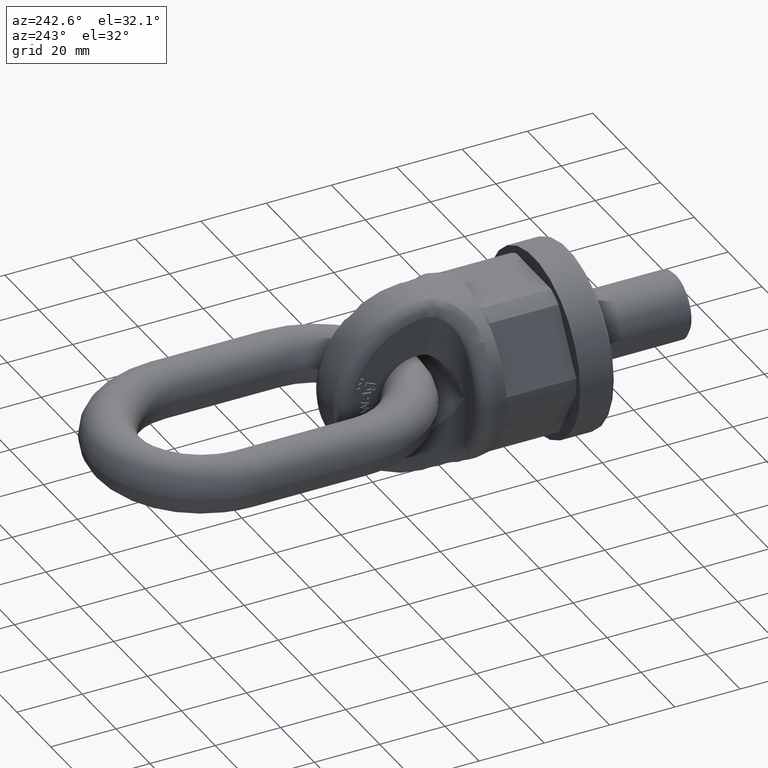
[diagram: clean part render]
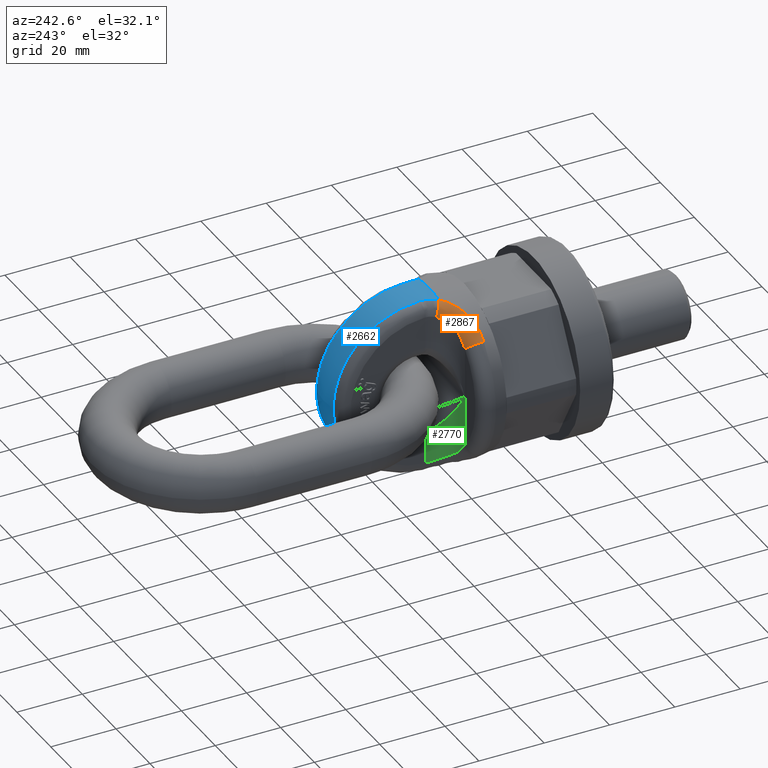
[diagram: same view with three faces highlighted in distinct colors, each labeled with its STEP entity id]
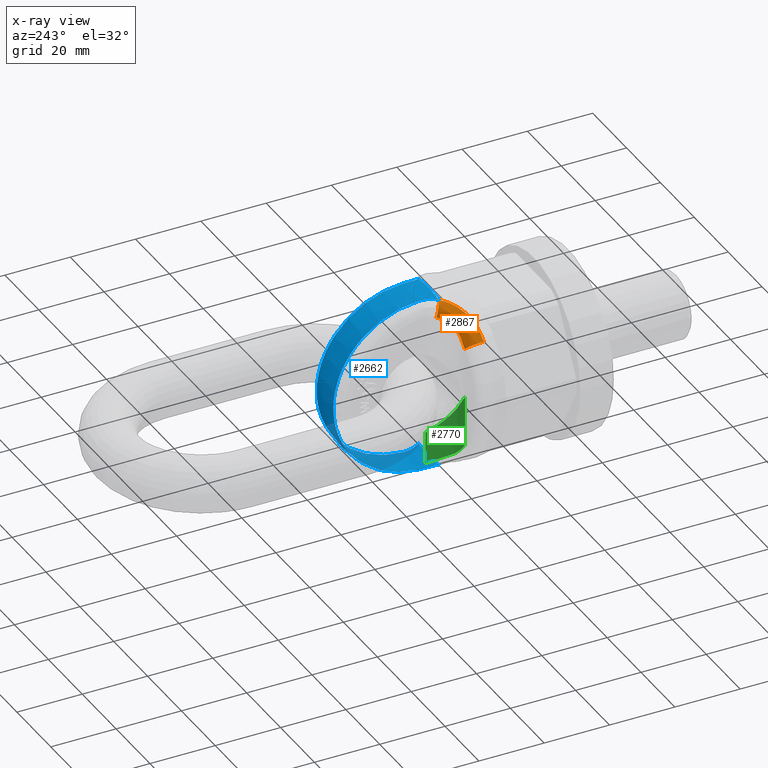
[diagram: x-ray of the same camera — body ghosted, the three highlighted faces saturated]
A machine part, auxiliary view with three faces highlighted in distinct colors.
The next image is the same camera in x-ray (body ghosted, the three faces saturated) — at least one of them is partly hidden behind the body in this view.
Their STEP definitions:

[orange] entity #2867 — the highlighted face is a freeform B-spline surface patch.
#209=(
BOUNDED_SURFACE()
B_SPLINE_SURFACE(3,2,((#9536,#9537,#9538),(#9539,#9540,#9541),(#9542,#9543,
#9544),(#9545,#9546,#9547),(#9548,#9549,#9550),(#9551,#9552,#9553),(#9554,
#9555,#9556),(#9557,#9558,#9559),(#9560,#9561,#9562),(#9563,#9564,#9565)),
 .UNSPECIFIED.,.F.,.F.,.F.)
B_SPLINE_SURFACE_WITH_KNOTS((4,2,2,2,4),(3,3),(0.,0.25,0.5,0.75,1.),(0.,
1.),.UNSPECIFIED.)
GEOMETRIC_REPRESENTATION_ITEM()
RATIONAL_B_SPLINE_SURFACE(((1.,0.644133810141845,1.),(1.,0.66588204352899,
1.),(1.,0.68458379151949,1.),(1.,0.714900270994408,1.),(1.,0.726509737506243,
1.),(1.,0.741906373784703,1.),(1.,0.745985489708039,1.),(1.,0.75064819052646,
1.),(1.,0.751424133303945,1.),(1.,0.753233426508289,1.)))
REPRESENTATION_ITEM('')
SURFACE()
);
#352=B_SPLINE_CURVE_WITH_KNOTS('',3,(#7036,#7037,#7038,#7039,#7040,#7041),
 .UNSPECIFIED.,.F.,.F.,(4,2,4),(0.,0.5,1.),.UNSPECIFIED.);
#536=B_SPLINE_CURVE_WITH_KNOTS('',3,(#8555,#8556,#8557,#8558,#8559,#8560),
 .UNSPECIFIED.,.F.,.F.,(4,2,4),(0.,0.5,1.),.UNSPECIFIED.);
#2003=FACE_OUTER_BOUND('',#3326,.T.);
#2867=ADVANCED_FACE('',(#2003),#209,.T.);
#3326=EDGE_LOOP('',(#4493,#4494,#4495,#4496));
#4493=ORIENTED_EDGE('',*,*,#5517,.F.);
#4494=ORIENTED_EDGE('',*,*,#5341,.F.);
#4495=ORIENTED_EDGE('',*,*,#5518,.F.);
#4496=ORIENTED_EDGE('',*,*,#5065,.F.);
#4652=VERTEX_POINT('',#7035);
#4653=VERTEX_POINT('',#7042);
#4833=VERTEX_POINT('',#8554);
#4834=VERTEX_POINT('',#8561);
#5065=EDGE_CURVE('',#4652,#4653,#352,.T.);
#5341=EDGE_CURVE('',#4833,#4834,#536,.T.);
#5517=EDGE_CURVE('',#4834,#4652,#5583,.T.);
#5518=EDGE_CURVE('',#4653,#4833,#5584,.T.);
#5583=CIRCLE('',#5782,3.75);
#5584=CIRCLE('',#5783,3.75);
#5782=AXIS2_PLACEMENT_3D('',#9534,#6523,#6524);
#5783=AXIS2_PLACEMENT_3D('',#9535,#6525,#6526);
#6523=DIRECTION('',(0.374934514116953,0.894580537769602,0.243207260516075));
#6524=DIRECTION('',(0.922272370507941,-0.386540650640606,1.85037170770859E-15));
#6525=DIRECTION('',(-0.69182554738145,0.,-0.722064686846239));
#6526=DIRECTION('',(-0.722064686846239,0.,0.69182554738145));
#7035=CARTESIAN_POINT('',(-5.97855748545781,42.8199600952318,26.4311194784264));
#7036=CARTESIAN_POINT('',(-5.97855748545781,42.8199600952318,26.4311194784264));
#7037=CARTESIAN_POINT('',(-7.26219213319004,40.2072835726519,25.6781542499971));
#7038=CARTESIAN_POINT('',(-9.52469696534108,38.2870663902746,24.6832729160973));
#7039=CARTESIAN_POINT('',(-14.2098259360332,36.0123617819212,21.8527492213663));
#7040=CARTESIAN_POINT('',(-16.6013238864941,35.6118127402589,20.0437038832759));
#7041=CARTESIAN_POINT('',(-18.6682431880994,35.6118127402589,17.8864411977636));
#7042=CARTESIAN_POINT('',(-18.6682431880994,35.6118127402589,17.8864411977636));
#8554=CARTESIAN_POINT('',(-16.,40.,15.3299405991591));
#8555=CARTESIAN_POINT('',(-16.,40.,15.3299405991591));
#8556=CARTESIAN_POINT('',(-14.8794748560647,40.,17.0476472472803));
#8557=CARTESIAN_POINT('',(-13.5271713575025,40.2280065150104,18.6110127704284));
#8558=CARTESIAN_POINT('',(-10.7475472236543,41.7605686109922,21.1686897909156));
#8559=CARTESIAN_POINT('',(-9.37125788862122,43.1195448749663,22.1128663312295));
#8560=CARTESIAN_POINT('',(-8.62182103593652,44.9076747948751,22.8268759131865));
#8561=CARTESIAN_POINT('',(-8.62182103593652,44.9076747948751,22.8268759131865));
#9534=CARTESIAN_POINT('',(-5.16329964653175,43.4581473549729,22.8268759131865));
#9535=CARTESIAN_POINT('',(-16.,36.25,15.3299405991591));
#9536=CARTESIAN_POINT('',(-18.6682431880994,35.6118127402589,17.8864411977636));
#9537=CARTESIAN_POINT('',(-19.2154608231793,40.,18.4107420628004));
#9538=CARTESIAN_POINT('',(-16.,40.,15.3299405991591));
#9539=CARTESIAN_POINT('',(-17.5894274051343,35.6118127385278,19.0124111523872));
#9540=CARTESIAN_POINT('',(-18.2757182966139,39.7553156357124,19.3304786546601));
#9541=CARTESIAN_POINT('',(-15.3704605252578,40.,16.2949918034262));
#9542=CARTESIAN_POINT('',(-16.4444409765082,35.7197833261104,20.0308110186554));
#9543=CARTESIAN_POINT('',(-17.2742164878545,39.6319575712031,20.2059870721022));
#9544=CARTESIAN_POINT('',(-14.7036868971831,40.0735118891017,17.1696606235407));
#9545=CARTESIAN_POINT('',(-14.0665659403365,36.240853672402,21.8734865684652));
#9546=CARTESIAN_POINT('',(-15.2751604125625,39.7183111175987,21.79041537681));
#9547=CARTESIAN_POINT('',(-13.3206818150558,40.4282831869797,18.7599826376661));
#9548=CARTESIAN_POINT('',(-12.8138626962236,36.6663209537043,22.7058835721363));
#9549=CARTESIAN_POINT('',(-14.2427097700032,39.9249982990616,22.5300147851844));
#9550=CARTESIAN_POINT('',(-12.5929416010845,40.7179630395719,19.4829003662312));
#9551=CARTESIAN_POINT('',(-10.4541482640395,37.8647950775256,24.1098264041129));
#9552=CARTESIAN_POINT('',(-12.3652239194859,40.6682557095507,23.7928831577407));
#9553=CARTESIAN_POINT('',(-11.2223177793594,41.5339454204874,20.7145732196923));
#9554=CARTESIAN_POINT('',(-9.31550375857059,38.6554843760291,24.7033215380145));
#9555=CARTESIAN_POINT('',(-11.4767155059349,41.2130328492782,24.3507055515921));
#9556=CARTESIAN_POINT('',(-10.5609813730963,42.0722870714899,21.242556788107));
#9557=CARTESIAN_POINT('',(-7.38299053056484,40.5259625862372,25.6840742142593));
#9558=CARTESIAN_POINT('',(-10.0002843734955,42.5300064920483,25.2823841347885));
#9559=CARTESIAN_POINT('',(-9.43805172394303,43.3458041501261,22.1294529456252));
#9560=CARTESIAN_POINT('',(-6.57216570205374,41.6117453967237,26.0829157689008));
#9561=CARTESIAN_POINT('',(-9.38929163417932,43.3066419896677,25.6719154107763));
#9562=CARTESIAN_POINT('',(-8.96661512727827,44.0850082436809,22.4983808801101));
#9563=CARTESIAN_POINT('',(-5.97855748545781,42.8199600952318,26.4311194784264));
#9564=CARTESIAN_POINT('',(-8.9296691013636,44.1731601595136,26.0032011622555));
#9565=CARTESIAN_POINT('',(-8.62182103593652,44.9076747948752,22.8268759131865));

[blue] entity #2662 — the highlighted spherical surface has radius 27.5 mm.
#307=SPHERICAL_SURFACE('',#5652,27.5);
#353=B_SPLINE_CURVE_WITH_KNOTS('',3,(#7045,#7046,#7047,#7048),
 .UNSPECIFIED.,.F.,.F.,(4,4),(0.,1.),.UNSPECIFIED.);
#354=B_SPLINE_CURVE_WITH_KNOTS('',3,(#7052,#7053,#7054,#7055),
 .UNSPECIFIED.,.F.,.F.,(4,4),(0.,1.),.UNSPECIFIED.);
#355=B_SPLINE_CURVE_WITH_KNOTS('',3,(#7056,#7057,#7058,#7059),
 .UNSPECIFIED.,.F.,.F.,(4,4),(0.,1.),.UNSPECIFIED.);
#356=B_SPLINE_CURVE_WITH_KNOTS('',3,(#7063,#7064,#7065,#7066),
 .UNSPECIFIED.,.F.,.F.,(4,4),(0.,1.),.UNSPECIFIED.);
#1814=FACE_OUTER_BOUND('',#3098,.T.);
#2662=ADVANCED_FACE('',(#1814),#307,.T.);
#3098=EDGE_LOOP('',(#3522,#3523,#3524,#3525,#3526,#3527,#3528,#3529));
#3522=ORIENTED_EDGE('',*,*,#5060,.F.);
#3523=ORIENTED_EDGE('',*,*,#5067,.T.);
#3524=ORIENTED_EDGE('',*,*,#5068,.T.);
#3525=ORIENTED_EDGE('',*,*,#5069,.T.);
#3526=ORIENTED_EDGE('',*,*,#5064,.F.);
#3527=ORIENTED_EDGE('',*,*,#5070,.T.);
#3528=ORIENTED_EDGE('',*,*,#5071,.T.);
#3529=ORIENTED_EDGE('',*,*,#5072,.T.);
#4647=VERTEX_POINT('',#7015);
#4648=VERTEX_POINT('',#7017);
#4651=VERTEX_POINT('',#7033);
#4652=VERTEX_POINT('',#7035);
#4654=VERTEX_POINT('',#7049);
#4655=VERTEX_POINT('',#7051);
#4656=VERTEX_POINT('',#7060);
#4657=VERTEX_POINT('',#7062);
#5060=EDGE_CURVE('',#4647,#4648,#5554,.T.);
#5064=EDGE_CURVE('',#4651,#4652,#5556,.T.);
#5067=EDGE_CURVE('',#4647,#4654,#353,.T.);
#5068=EDGE_CURVE('',#4654,#4655,#5558,.T.);
#5069=EDGE_CURVE('',#4655,#4652,#354,.T.);
#5070=EDGE_CURVE('',#4651,#4656,#355,.T.);
#5071=EDGE_CURVE('',#4656,#4657,#5559,.T.);
#5072=EDGE_CURVE('',#4657,#4648,#356,.T.);
#5554=CIRCLE('',#5645,27.0988417924046);
#5556=CIRCLE('',#5647,27.0988417924046);
#5558=CIRCLE('',#5650,27.0561128212689);
#5559=CIRCLE('',#5651,27.0561128212689);
#5645=AXIS2_PLACEMENT_3D('',#7016,#5961,#5962);
#5647=AXIS2_PLACEMENT_3D('',#7034,#5965,#5966);
#5650=AXIS2_PLACEMENT_3D('',#7050,#5971,#5972);
#5651=AXIS2_PLACEMENT_3D('',#7061,#5973,#5974);
#5652=AXIS2_PLACEMENT_3D('',#7067,#5975,#5976);
#5961=DIRECTION('',(0.,-1.,0.));
#5962=DIRECTION('',(0.,0.,-1.));
#5965=DIRECTION('',(0.,-1.,0.));
#5966=DIRECTION('',(0.,0.,-1.));
#5971=DIRECTION('',(1.,2.47817639425258E-16,2.34291072916505E-15));
#5972=DIRECTION('',(2.56463075451569E-16,-1.,5.6946242266502E-31));
#5973=DIRECTION('',(-1.,2.47817639425258E-16,0.));
#5974=DIRECTION('',(-2.56463075451569E-16,-1.,0.));
#5975=DIRECTION('',(6.12323399573677E-17,-1.,0.));
#5976=DIRECTION('',(1.,0.,0.));
#7015=CARTESIAN_POINT('',(-5.97855748545769,42.8199600952318,-26.4311194784265));
#7016=CARTESIAN_POINT('',(0.,42.8199600952318,0.));
#7017=CARTESIAN_POINT('',(5.97855748545775,42.8199600952318,-26.4311194784264));
#7033=CARTESIAN_POINT('',(5.97855748545775,42.8199600952318,26.4311194784264));
#7034=CARTESIAN_POINT('',(0.,42.8199600952318,0.));
#7035=CARTESIAN_POINT('',(-5.97855748545781,42.8199600952318,26.4311194784264));
#7045=CARTESIAN_POINT('',(-5.97855748545769,42.8199600952318,-26.4311194784265));
#7046=CARTESIAN_POINT('',(-5.29234158646115,44.4572470475844,-26.8762443805993));
#7047=CARTESIAN_POINT('',(-4.92105263157888,46.248441643119,-27.0890961240213));
#7048=CARTESIAN_POINT('',(-4.92105263157888,48.0789473684211,-27.0499179470443));
#7049=CARTESIAN_POINT('',(-4.92105263157888,48.0789473684211,-27.0499179470443));
#7050=CARTESIAN_POINT('',(-4.92105263157894,47.5,-1.15295870093122E-14));
#7051=CARTESIAN_POINT('',(-4.92105263157901,48.0789473684211,27.0499179470443));
#7052=CARTESIAN_POINT('',(-4.92105263157901,48.0789473684211,27.0499179470443));
#7053=CARTESIAN_POINT('',(-4.92105263157901,46.2488443570525,27.0890875047651));
#7054=CARTESIAN_POINT('',(-5.29266197588806,44.4564826097028,26.8760365548807));
#7055=CARTESIAN_POINT('',(-5.97855748545781,42.8199600952318,26.4311194784264));
#7056=CARTESIAN_POINT('',(5.97855748545775,42.8199600952318,26.4311194784264));
#7057=CARTESIAN_POINT('',(5.29234158646121,44.4572470475844,26.8762443805993));
#7058=CARTESIAN_POINT('',(4.92105263157895,46.248441643119,27.0890961240213));
#7059=CARTESIAN_POINT('',(4.92105263157895,48.0789473684211,27.0499179470443));
#7060=CARTESIAN_POINT('',(4.92105263157894,48.0789473684211,27.0499179470443));
#7061=CARTESIAN_POINT('',(4.92105263157894,47.5,0.));
#7062=CARTESIAN_POINT('',(4.92105263157894,48.0789473684211,-27.0499179470443));
#7063=CARTESIAN_POINT('',(4.92105263157894,48.0789473684211,-27.0499179470443));
#7064=CARTESIAN_POINT('',(4.92105263157894,46.2488443570525,-27.0890875047651));
#7065=CARTESIAN_POINT('',(5.292661975888,44.4564826097028,-26.8760365548808));
#7066=CARTESIAN_POINT('',(5.97855748545775,42.8199600952318,-26.4311194784264));
#7067=CARTESIAN_POINT('',(0.,47.5,0.));

[green] entity #2770 — the highlighted cylindrical surface (edge-blend (fillet) strip) has radius 8 mm, axis along (-0, 0, 1).
#532=B_SPLINE_CURVE_WITH_KNOTS('',3,(#8525,#8526,#8527,#8528,#8529,#8530,
#8531,#8532),.UNSPECIFIED.,.F.,.F.,(4,2,2,4),(0.,0.5,0.75,1.),
 .UNSPECIFIED.);
#533=B_SPLINE_CURVE_WITH_KNOTS('',3,(#8533,#8534,#8535,#8536),
 .UNSPECIFIED.,.F.,.F.,(4,4),(0.,1.),.UNSPECIFIED.);
#534=B_SPLINE_CURVE_WITH_KNOTS('',3,(#8538,#8539,#8540,#8541,#8542,#8543),
 .UNSPECIFIED.,.F.,.F.,(4,2,4),(0.,0.5,1.),.UNSPECIFIED.);
#1913=FACE_OUTER_BOUND('',#3222,.T.);
#2026=CYLINDRICAL_SURFACE('',#5727,8.);
#2179=LINE('',#8342,#2481);
#2207=LINE('',#8523,#2509);
#2481=VECTOR('',#6251,1.);
#2509=VECTOR('',#6285,1.);
#2770=ADVANCED_FACE('',(#1913),#2026,.F.);
#3222=EDGE_LOOP('',(#4064,#4065,#4066,#4067,#4068));
#4064=ORIENTED_EDGE('',*,*,#5335,.F.);
#4065=ORIENTED_EDGE('',*,*,#5336,.T.);
#4066=ORIENTED_EDGE('',*,*,#5285,.F.);
#4067=ORIENTED_EDGE('',*,*,#5337,.T.);
#4068=ORIENTED_EDGE('',*,*,#5338,.T.);
#4662=VERTEX_POINT('',#7101);
#4781=VERTEX_POINT('',#8343);
#4782=VERTEX_POINT('',#8344);
#4831=VERTEX_POINT('',#8524);
#4832=VERTEX_POINT('',#8537);
#5285=EDGE_CURVE('',#4781,#4782,#2179,.T.);
#5335=EDGE_CURVE('',#4662,#4831,#2207,.T.);
#5336=EDGE_CURVE('',#4662,#4782,#532,.T.);
#5337=EDGE_CURVE('',#4781,#4832,#533,.T.);
#5338=EDGE_CURVE('',#4832,#4831,#534,.T.);
#5727=AXIS2_PLACEMENT_3D('',#8544,#6286,#6287);
#6251=DIRECTION('',(-2.34291072916505E-15,0.,1.));
#6285=DIRECTION('',(2.34291072916505E-15,0.,-1.));
#6286=DIRECTION('',(-2.34291072916505E-15,0.,1.));
#6287=DIRECTION('',(1.,0.,2.16840434497101E-15));
#7101=CARTESIAN_POINT('',(-16.,40.,-3.74865716666408E-14));
#8342=CARTESIAN_POINT('',(-8.00000000000006,48.,25.3808856809628));
#8343=CARTESIAN_POINT('',(-7.99999999999994,48.,-23.3612927724473));
#8344=CARTESIAN_POINT('',(-7.99999999999997,48.,-13.6037678604128));
#8523=CARTESIAN_POINT('',(-15.9999999999999,40.,-25.3808856809629));
#8524=CARTESIAN_POINT('',(-16.,40.,-15.3299405991591));
#8525=CARTESIAN_POINT('',(-16.,40.,-3.74865716666408E-14));
#8526=CARTESIAN_POINT('',(-14.3257582873649,40.,-2.6601031203214));
#8527=CARTESIAN_POINT('',(-12.6348126955555,40.4880887032965,-5.34011389247188));
#8528=CARTESIAN_POINT('',(-10.3368884788347,42.2669822841954,-9.09986402867703));
#8529=CARTESIAN_POINT('',(-9.61930356697684,43.0295654571167,-10.2945724596263));
#8530=CARTESIAN_POINT('',(-8.44814669295001,45.1037924549025,-12.3840302820193));
#8531=CARTESIAN_POINT('',(-7.99999999999997,46.4347580511207,-13.2657807474297));
#8532=CARTESIAN_POINT('',(-7.99999999999997,48.,-13.6037678604128));
#8533=CARTESIAN_POINT('',(-7.99999999999994,48.,-23.3612927724473));
#8534=CARTESIAN_POINT('',(-7.99999999999994,46.9091482246335,-23.3955842939114));
#8535=CARTESIAN_POINT('',(-8.2264074941145,45.8511175710558,-23.2035975231327));
#8536=CARTESIAN_POINT('',(-8.62182103593642,44.9076747948751,-22.8268759131865));
#8537=CARTESIAN_POINT('',(-8.62182103593642,44.9076747948751,-22.8268759131865));
#8538=CARTESIAN_POINT('',(-8.62182103593642,44.9076747948751,-22.8268759131865));
#8539=CARTESIAN_POINT('',(-9.3691551536251,43.1245619265651,-22.1148696660404));
#8540=CARTESIAN_POINT('',(-10.7230395826794,41.7774745141623,-21.1894807836347));
#8541=CARTESIAN_POINT('',(-13.5258189078003,40.225389875314,-18.6140008230382));
#8542=CARTESIAN_POINT('',(-14.8791332481664,40.,-17.0481709143851));
#8543=CARTESIAN_POINT('',(-16.,40.,-15.3299405991591));
#8544=CARTESIAN_POINT('',(-15.9999999999999,48.,-30.25));